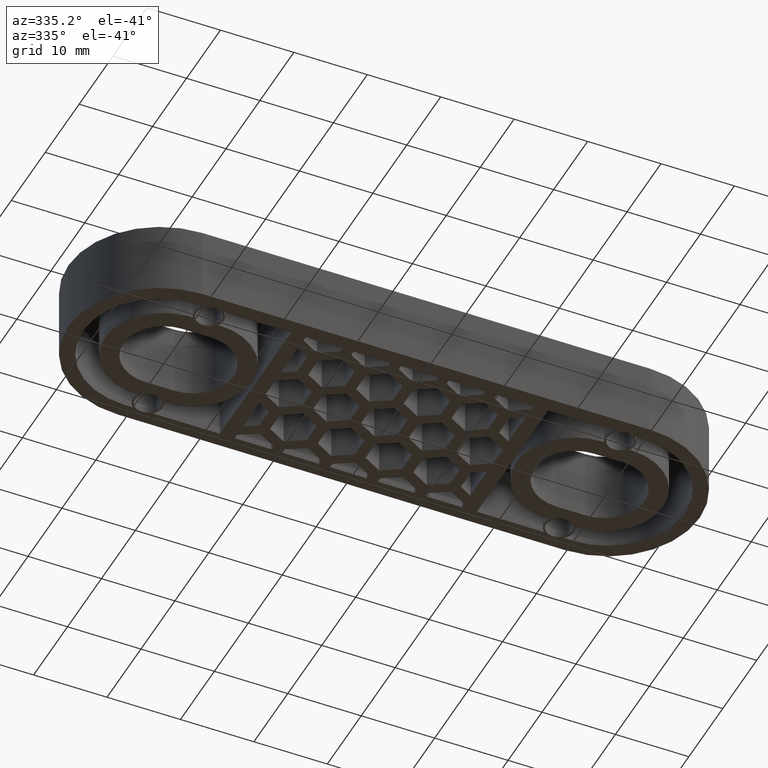
[diagram: clean part render]
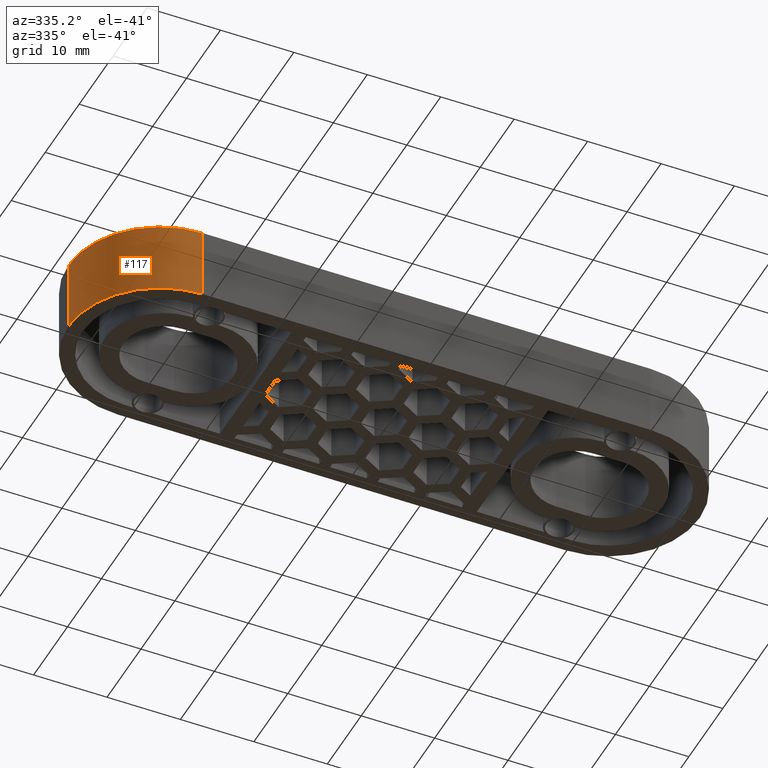
[diagram: same view with one face highlighted and labeled with its STEP entity id]
A machine part, auxiliary view. The second image highlights one B-rep face of the part: STEP entity #117.
In plain terms, the highlighted cylindrical surface (partial cylindrical patch) has radius 12.5 mm, axis along (0, -0, -1).
Its self-contained STEP definition (entity closure, byte-faithful):
#117 = ADVANCED_FACE( '', ( #484 ), #485, .T. );
#484 = FACE_OUTER_BOUND( '', #1092, .T. );
#485 = CYLINDRICAL_SURFACE( '', #1093, 12.5000000000000 );
#1092 = EDGE_LOOP( '', ( #2128, #2129, #2130, #2131 ) );
#1093 = AXIS2_PLACEMENT_3D( '', #2132, #2133, #2134 );
#2128 = ORIENTED_EDGE( '', *, *, #3816, .T. );
#2129 = ORIENTED_EDGE( '', *, *, #4185, .F. );
#2130 = ORIENTED_EDGE( '', *, *, #3966, .F. );
#2131 = ORIENTED_EDGE( '', *, *, #4184, .T. );
#2132 = CARTESIAN_POINT( '', ( -30.5000000000000, -2.77555756156289E-015, -2.77555756156289E-014 ) );
#2133 = DIRECTION( '', ( 5.60519385729927E-049, -6.12303176911189E-017, -1.00000000000000 ) );
#2134 = DIRECTION( '', ( -1.00000000000000, -6.12303176911189E-017, 3.74915180455535E-033 ) );
#3816 = EDGE_CURVE( '', #4533, #4531, #4534, .T. );
#3966 = EDGE_CURVE( '', #4825, #4827, #4828, .T. );
#4184 = EDGE_CURVE( '', #4825, #4533, #5233, .T. );
#4185 = EDGE_CURVE( '', #4827, #4531, #5234, .T. );
#4531 = VERTEX_POINT( '', #5709 );
#4533 = VERTEX_POINT( '', #5711 );
#4534 = CIRCLE( '', #5712, 12.5000000000000 );
#4825 = VERTEX_POINT( '', #6117 );
#4827 = VERTEX_POINT( '', #6120 );
#4828 = CIRCLE( '', #6121, 12.5000000000000 );
#5233 = LINE( '', #6732, #6733 );
#5234 = LINE( '', #6734, #6735 );
#5709 = CARTESIAN_POINT( '', ( -43.0000000000000, -5.22477026920765E-015, 9.99999999999998 ) );
#5711 = CARTESIAN_POINT( '', ( -30.5000000000000, -12.5000000000000, 9.99999999999998 ) );
#5712 = AXIS2_PLACEMENT_3D( '', #7468, #7469, #7470 );
#6117 = CARTESIAN_POINT( '', ( -30.5000000000000, -12.5000000000000, -2.69901966444899E-014 ) );
#6120 = CARTESIAN_POINT( '', ( -43.0000000000000, -5.83707344611884E-015, -2.77555756156289E-014 ) );
#6121 = AXIS2_PLACEMENT_3D( '', #7688, #7689, #7690 );
#6732 = CARTESIAN_POINT( '', ( -30.5000000000000, -12.5000000000000, -2.69901966444899E-014 ) );
#6733 = VECTOR( '', #7930, 1000.00000000000 );
#6734 = CARTESIAN_POINT( '', ( -43.0000000000000, -5.83707344611884E-015, -2.77555756156289E-014 ) );
#6735 = VECTOR( '', #7931, 1000.00000000000 );
#7468 = CARTESIAN_POINT( '', ( -30.5000000000000, -2.16325438465170E-015, 9.99999999999998 ) );
#7469 = DIRECTION( '', ( 5.60519385729927E-049, -6.12303176911189E-017, -1.00000000000000 ) );
#7470 = DIRECTION( '', ( -6.12303176911189E-017, 1.00000000000000, -6.12303176911189E-017 ) );
#7688 = CARTESIAN_POINT( '', ( -30.5000000000000, -2.77555756156289E-015, -2.77555756156289E-014 ) );
#7689 = DIRECTION( '', ( 5.60519385729927E-049, -6.12303176911189E-017, -1.00000000000000 ) );
#7690 = DIRECTION( '', ( -6.12303176911189E-017, 1.00000000000000, -6.12303176911189E-017 ) );
#7930 = DIRECTION( '', ( 0.000000000000000, 6.12303176911189E-017, 1.00000000000000 ) );
#7931 = DIRECTION( '', ( 0.000000000000000, 6.12303176911189E-017, 1.00000000000000 ) );